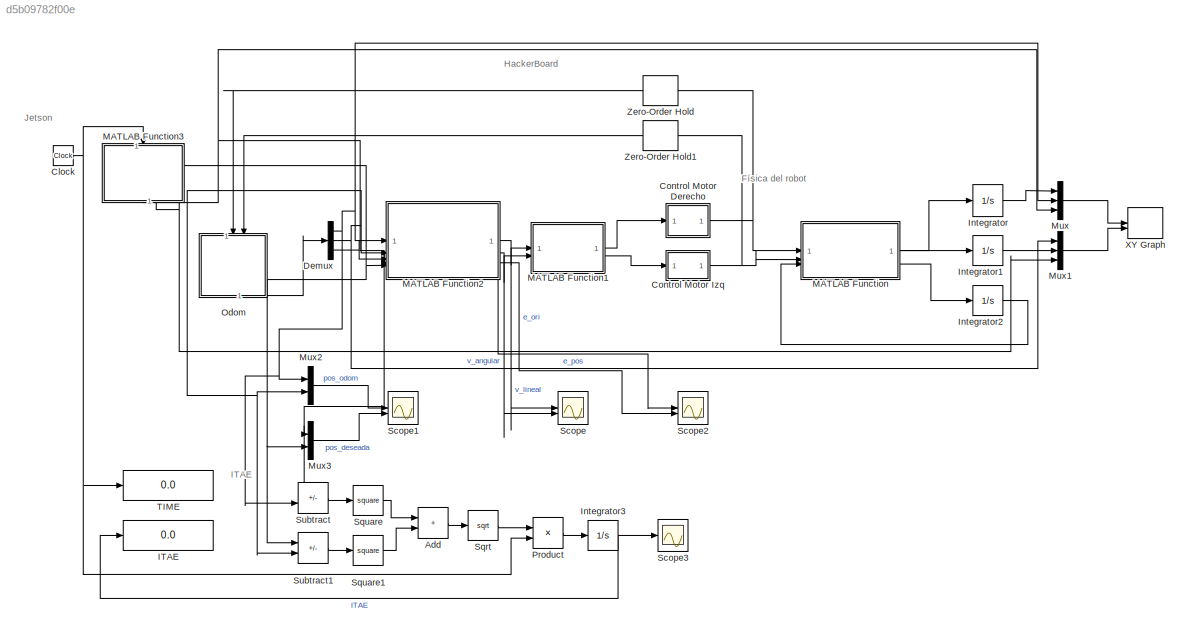
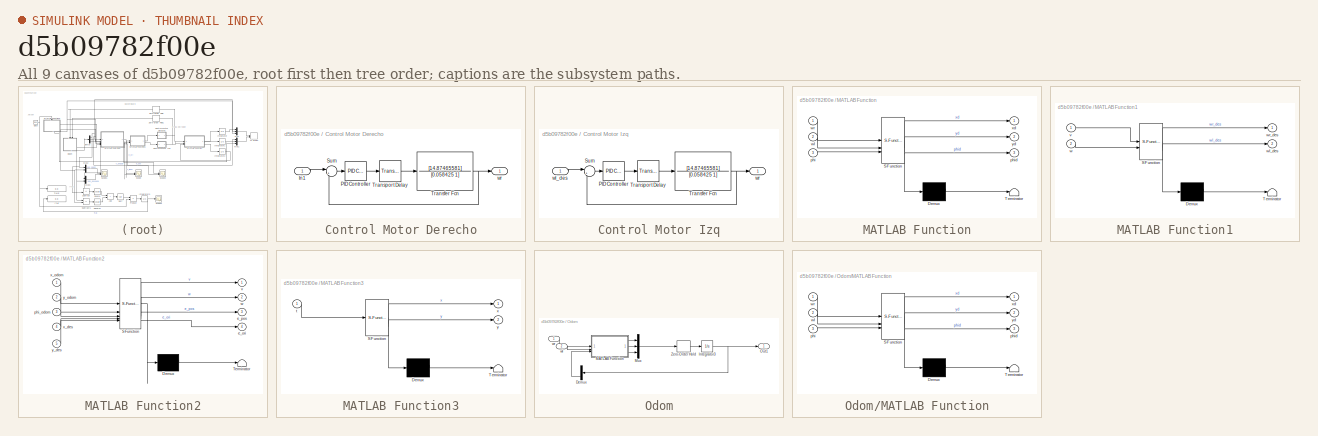
[diagram: thumbnail index - all 9 canvases of the model, root first then tree order]
MODEL slx_d5b09782f00e
KIND model
CONFIG AbsTol = auto
CONFIG EnableMultiTasking = off
CONFIG FixedStep = 0.001
CONFIG MaxStep = auto
CONFIG MinStep = auto
CONFIG RelTol = 1e-3
CONFIG SampleTimeConstraint = Unconstrained
CONFIG SolverName = FixedStepAuto
CONFIG StartTime = 0.0
CONFIG StopTime = 160
BLOCK [Sum] Add
  IconShape = rectangular
BLOCK [Clock] Clock
BLOCK [SubSystem] Control Motor Derecho
BLOCK [Inport] Control Motor Derecho/In1
BLOCK [Reference] Control Motor Derecho/PID Controller  REF=slpidlib/PID Controller
  LibrarySourceBlock = simulink/Continuous/PID Controller
  SourceBlock = slpidlib/PID Controller
  SourceType = PID 1dof
BLOCK [Sum] Control Motor Derecho/Sum
  Inputs = |+-
BLOCK [TransferFcn] Control Motor Derecho/Transfer Fcn
  Denominator = [0.058425 1]
  Numerator = [14.87465581]
BLOCK [TransportDelay] Control Motor Derecho/Transport Delay
  DelayTime = 0.043735
BLOCK [Outport] Control Motor Derecho/wr
BLOCK [SubSystem] Control Motor Izq
BLOCK [Reference] Control Motor Izq/PID Controller  REF=slpidlib/PID Controller
  LibrarySourceBlock = simulink/Continuous/PID Controller
  SourceBlock = slpidlib/PID Controller
  SourceType = PID 1dof
BLOCK [Sum] Control Motor Izq/Sum
  Inputs = |+-
BLOCK [TransferFcn] Control Motor Izq/Transfer Fcn
  Denominator = [0.058425 1]
  Numerator = [14.87465581]
BLOCK [TransportDelay] Control Motor Izq/Transport Delay
  DelayTime = 0.043735
BLOCK [Inport] Control Motor Izq/wl_des
BLOCK [Outport] Control Motor Izq/wr
BLOCK [Demux] Demux
  Outputs = 3
BLOCK [Display] ITAE
  Decimation = 1
BLOCK [Integrator] Integrator
  ContinuousStateAttributes = 'x'
BLOCK [Integrator] Integrator1
  ContinuousStateAttributes = 'y'
BLOCK [Integrator] Integrator2
  ContinuousStateAttributes = 'orientation'
BLOCK [Integrator] Integrator3
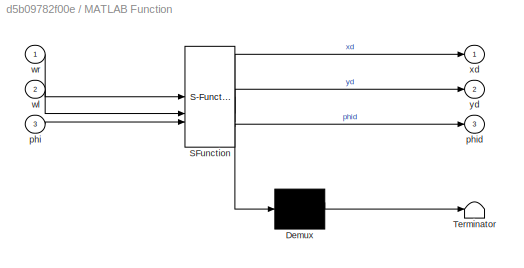
BLOCK [SubSystem] MATLAB Function
  ErrorFcn = Stateflow.Translate.translate
  PermitHierarchicalResolution = ExplicitOnly
  SFBlockType = MATLAB Function
  TreatAsAtomicUnit = on
BLOCK [Demux] MATLAB Function/ Demux 
  Outputs = 1
BLOCK [S-Function] MATLAB Function/ SFunction 
  EnableBusSupport = on
  FunctionName = sf_sfun
  PortCounts = [3 4]
  SFcnIsStateOwnerBlock = off
  SFunctionDeploymentMode = off
  Tag = Stateflow S-Function 2
BLOCK [Terminator] MATLAB Function/ Terminator 
BLOCK [Inport] MATLAB Function/phi
  Port = 3
BLOCK [Outport] MATLAB Function/phid
  Port = 3
BLOCK [Inport] MATLAB Function/wl
  Port = 2
BLOCK [Inport] MATLAB Function/wr
BLOCK [Outport] MATLAB Function/xd
BLOCK [Outport] MATLAB Function/yd
  Port = 2
BLOCK [SubSystem] MATLAB Function1
  ErrorFcn = Stateflow.Translate.translate
  PermitHierarchicalResolution = ExplicitOnly
  SFBlockType = MATLAB Function
  TreatAsAtomicUnit = on
BLOCK [Demux] MATLAB Function1/ Demux 
  Outputs = 1
BLOCK [S-Function] MATLAB Function1/ SFunction 
  EnableBusSupport = on
  FunctionName = sf_sfun
  PortCounts = [2 3]
  SFcnIsStateOwnerBlock = off
  SFunctionDeploymentMode = off
  Tag = Stateflow S-Function 1
BLOCK [Terminator] MATLAB Function1/ Terminator 
BLOCK [Inport] MATLAB Function1/v
BLOCK [Inport] MATLAB Function1/w
  Port = 2
BLOCK [Outport] MATLAB Function1/wl_des
  Port = 2
BLOCK [Outport] MATLAB Function1/wr_des
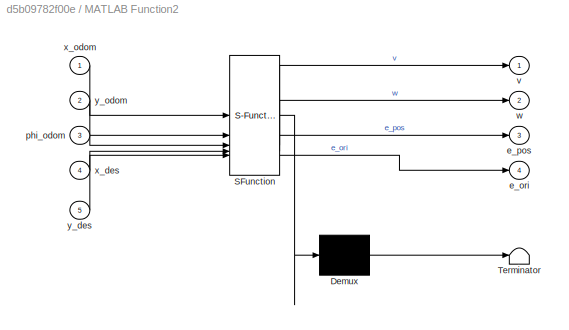
BLOCK [SubSystem] MATLAB Function2
  ErrorFcn = Stateflow.Translate.translate
  PermitHierarchicalResolution = ExplicitOnly
  SFBlockType = MATLAB Function
  TreatAsAtomicUnit = on
BLOCK [Demux] MATLAB Function2/ Demux 
  Outputs = 1
BLOCK [S-Function] MATLAB Function2/ SFunction 
  EnableBusSupport = on
  FunctionName = sf_sfun
  PortCounts = [5 5]
  SFcnIsStateOwnerBlock = off
  SFunctionDeploymentMode = off
  Tag = Stateflow S-Function 3
BLOCK [Terminator] MATLAB Function2/ Terminator 
BLOCK [Outport] MATLAB Function2/e_ori
  Port = 4
BLOCK [Outport] MATLAB Function2/e_pos
  Port = 3
BLOCK [Inport] MATLAB Function2/phi_odom
  Port = 3
BLOCK [Outport] MATLAB Function2/v
BLOCK [Outport] MATLAB Function2/w
  Port = 2
BLOCK [Inport] MATLAB Function2/x_des
  Port = 4
BLOCK [Inport] MATLAB Function2/x_odom
BLOCK [Inport] MATLAB Function2/y_des
  Port = 5
BLOCK [Inport] MATLAB Function2/y_odom
  Port = 2
BLOCK [SubSystem] MATLAB Function3
  ErrorFcn = Stateflow.Translate.translate
  NameLocation = left
  PermitHierarchicalResolution = ExplicitOnly
  SFBlockType = MATLAB Function
  TreatAsAtomicUnit = on
BLOCK [Demux] MATLAB Function3/ Demux 
  Outputs = 1
BLOCK [S-Function] MATLAB Function3/ SFunction 
  EnableBusSupport = on
  FunctionName = sf_sfun
  PortCounts = [1 3]
  SFcnIsStateOwnerBlock = off
  SFunctionDeploymentMode = off
  Tag = Stateflow S-Function 5
BLOCK [Terminator] MATLAB Function3/ Terminator 
BLOCK [Inport] MATLAB Function3/t
BLOCK [Outport] MATLAB Function3/x
BLOCK [Outport] MATLAB Function3/y
  Port = 2
BLOCK [Mux] Mux
  DisplayOption = bar
  Inputs = 3
BLOCK [Mux] Mux1
  DisplayOption = bar
  Inputs = 3
BLOCK [Mux] Mux2
  DisplayOption = bar
  Inputs = 2
BLOCK [Mux] Mux3
  DisplayOption = bar
  Inputs = 2
BLOCK [SubSystem] Odom
  NameLocation = right
BLOCK [Demux] Odom/Demux
  Outputs = 3
BLOCK [Integrator] Odom/Integrator3
  InitialCondition = [0,0,0]
BLOCK [SubSystem] Odom/MATLAB Function
  ErrorFcn = Stateflow.Translate.translate
  PermitHierarchicalResolution = ExplicitOnly
  SFBlockType = MATLAB Function
  TreatAsAtomicUnit = on
BLOCK [Demux] Odom/MATLAB Function/ Demux 
  Outputs = 1
BLOCK [S-Function] Odom/MATLAB Function/ SFunction 
  EnableBusSupport = on
  FunctionName = sf_sfun
  PortCounts = [3 4]
  SFcnIsStateOwnerBlock = off
  SFunctionDeploymentMode = off
  Tag = Stateflow S-Function 4
BLOCK [Terminator] Odom/MATLAB Function/ Terminator 
BLOCK [Inport] Odom/MATLAB Function/phi
  Port = 3
BLOCK [Outport] Odom/MATLAB Function/phid
  Port = 3
BLOCK [Inport] Odom/MATLAB Function/wl
  Port = 2
BLOCK [Inport] Odom/MATLAB Function/wr
BLOCK [Outport] Odom/MATLAB Function/xd
BLOCK [Outport] Odom/MATLAB Function/yd
  Port = 2
BLOCK [Mux] Odom/Mux
  DisplayOption = bar
  Inputs = 3
BLOCK [Outport] Odom/Out1
BLOCK [ZeroOrderHold] Odom/Zero-Order Hold
  SampleTime = 0.1
BLOCK [Inport] Odom/wl
  Port = 2
BLOCK [Inport] Odom/wr
BLOCK [Product] Product
BLOCK [Scope] Scope
  Floating = off
  NumInputPorts = 2
  ScopeSpecificationString = Simulink.scopes.TimeScopeBlockCfg('CurrentConfiguration', extmgr.ConfigurationSet(extmgr.Configuration('Core','General UI',true),extmgr.Configuration('Core','Source UI',true),extmgr.Configuration('Sources','WiredSimulink',true),extmgr.Configuration('Visuals','Time Domain',true,'SerializedDisplays',{struct('MinYLimReal','-0.0375','MaxYLimReal','0.3375','YLabelReal','','MinYLimMag','0.00000','MaxYLi...<+1451ch>
BLOCK [Scope] Scope1
  Floating = off
  NumInputPorts = 2
  ScopeSpecificationString = Simulink.scopes.TimeScopeBlockCfg('CurrentConfiguration', extmgr.ConfigurationSet(extmgr.Configuration('Core','General UI',true),extmgr.Configuration('Core','Source UI',true),extmgr.Configuration('Sources','WiredSimulink',true,'DataLoggingVariableName','ScopeData1'),extmgr.Configuration('Visuals','Time Domain',true,'SerializedDisplays',{struct('MinYLimReal','-4.75058','MaxYLimReal','2.75058','YLab...<+1531ch>
BLOCK [Scope] Scope2
  Floating = off
  NumInputPorts = 2
  ScopeSpecificationString = Simulink.scopes.TimeScopeBlockCfg('CurrentConfiguration', extmgr.ConfigurationSet(extmgr.Configuration('Core','General UI',true),extmgr.Configuration('Core','Source UI',true),extmgr.Configuration('Sources','WiredSimulink',true,'DataLoggingVariableName','ScopeData1'),extmgr.Configuration('Visuals','Time Domain',true,'SerializedDisplays',{struct('MinYLimReal','-7.24282','MaxYLimReal','2.55231','YLab...<+1491ch>
BLOCK [Scope] Scope3
  Floating = off
  NumInputPorts = 1
  ScopeSpecificationString = Simulink.scopes.TimeScopeBlockCfg('CurrentConfiguration', extmgr.ConfigurationSet(extmgr.Configuration('Core','General UI',true),extmgr.Configuration('Core','Source UI',true),extmgr.Configuration('Sources','WiredSimulink',true,'DataLoggingVariableName','ScopeData1'),extmgr.Configuration('Visuals','Time Domain',true,'SerializedDisplays',{struct('MinYLimReal','-92.82399','MaxYLimReal','835.41591','Y...<+1490ch>
BLOCK [Sqrt] Sqrt
BLOCK [Math] Square
  Operator = square
BLOCK [Math] Square1
  Operator = square
BLOCK [Sum] Subtract
  IconShape = rectangular
  Inputs = +-
BLOCK [Sum] Subtract1
  IconShape = rectangular
  Inputs = +-
BLOCK [Display] TIME
  Decimation = 1
BLOCK [Record] XY Graph
  CompatibilityTag = XY
  FileSettingsInternal = {"entries":[{"content":{"excelSettings":{"content":{},"type":"Streamout.ExcelSettings"}},"type":"Streamout.FileSettingStorage","uuid":""}],"packageUris":["http:\/\/schema.mathworks.com\/mf0\/streamout_blocks\/R2020a"],"version":"1.0"}
  Layout = [1 1]
  SignalsInternal = {"entries":[{"content":{"signals":[{"content":{"blockPath":[],"dimensions":[3],"domain":"","hasChildren":true,"lineColor":"#77ac30","lineWidth":2,"port":1,"signalID":1,"signalName":"Mux"},"type":"RecordBlkView.Signal","uuid":""},{"content":{"blockPath":[],"channel":[1],"dimensions":[3],"domain":"","lineColor":"#139fff","parentID":1,"plots":[ 1 ],"port":1,"signalID":2,"signalName":"Mux"},"type":"Re...<+1384ch>
  VisualizationBindings = {"xyplotplugin":{"info":[{"series":[{"bindingParametersList":[{"parameter":"X-Axis","signalID":2,"signalName":"Mux(1)"},{"parameter":"Y-Axis","signalID":6,"signalName":"Mux1(1)"}],"seriesID":0},{"bindingParametersList":[{"parameter":"X-Axis","signalID":3,"signalName":"Mux(2)"},{"parameter":"Y-Axis","signalID":7,"signalName":"Mux1(2)"}],"seriesID":1},{"bindingParametersList":[{"parameter":"X-Axis",...<+128ch>
BLOCK [ZeroOrderHold] Zero-Order Hold
  NameLocation = top
  SampleTime = 0.01
BLOCK [ZeroOrderHold] Zero-Order Hold1
  NameLocation = top
  SampleTime = 0.01
ANNOTATION (root): Física del robot
ANNOTATION (root): HackerBoard
ANNOTATION (root): ITAE
ANNOTATION (root): Jetson
LINE Add:1 -> Sqrt:1
NET Clock:1 -> MATLAB Function3:1, Product:2, TIME:1
LINE Control Motor Derecho/In1:1 -> Control Motor Derecho/Sum:1
LINE Control Motor Derecho/PID Controller:1 -> Control Motor Derecho/Transport Delay:1
LINE Control Motor Derecho/Sum:1 -> Control Motor Derecho/PID Controller:1
NET Control Motor Derecho/Transfer Fcn:1 -> Control Motor Derecho/Sum:2, Control Motor Derecho/wr:1
LINE Control Motor Derecho/Transport Delay:1 -> Control Motor Derecho/Transfer Fcn:1
NET Control Motor Derecho:1 -> MATLAB Function:1, Zero-Order Hold:1
LINE Control Motor Izq/PID Controller:1 -> Control Motor Izq/Transport Delay:1
LINE Control Motor Izq/Sum:1 -> Control Motor Izq/PID Controller:1
NET Control Motor Izq/Transfer Fcn:1 -> Control Motor Izq/Sum:2, Control Motor Izq/wr:1
LINE Control Motor Izq/Transport Delay:1 -> Control Motor Izq/Transfer Fcn:1
LINE Control Motor Izq/wl_des:1 -> Control Motor Izq/Sum:1
NET Control Motor Izq:1 -> MATLAB Function:2, Zero-Order Hold1:1
NET Demux:1 -> MATLAB Function2:1, Mux2:1, Mux:2, Subtract:2
NET Demux:2 -> MATLAB Function2:2, Mux1:2, Mux2:2, Subtract1:2
LINE Demux:3 -> MATLAB Function2:3
LINE Integrator1:1 -> Mux1:1
LINE Integrator2:1 -> MATLAB Function:3
NET Integrator3:1 -> ITAE:1, Scope3:1
LINE Integrator:1 -> Mux:1
LINE MATLAB Function1:1 -> Control Motor Derecho:1
LINE MATLAB Function1:2 -> Control Motor Izq:1
NET MATLAB Function2:1 -> MATLAB Function1:1, Scope:1
NET MATLAB Function2:2 -> MATLAB Function1:2, Scope:2
LINE MATLAB Function2:3 -> Scope2:1
LINE MATLAB Function2:4 -> Scope2:2
NET MATLAB Function3:1 -> MATLAB Function2:4, Mux3:1, Mux:3, Subtract:1
NET MATLAB Function3:2 -> MATLAB Function2:5, Mux1:3, Mux3:2, Subtract1:1
LINE MATLAB Function:1 -> Integrator:1
LINE MATLAB Function:2 -> Integrator1:1
LINE MATLAB Function:3 -> Integrator2:1
LINE Mux1:1 -> XY Graph:2
LINE Mux2:1 -> Scope1:1
LINE Mux3:1 -> Scope1:2
LINE Mux:1 -> XY Graph:1
LINE Odom/Demux:3 -> Odom/MATLAB Function:3
NET Odom/Integrator3:1 -> Odom/Demux:1, Odom/Out1:1
LINE Odom/MATLAB Function:1 -> Odom/Mux:1
LINE Odom/MATLAB Function:2 -> Odom/Mux:2
LINE Odom/MATLAB Function:3 -> Odom/Mux:3
LINE Odom/Mux:1 -> Odom/Zero-Order Hold:1
LINE Odom/Zero-Order Hold:1 -> Odom/Integrator3:1
LINE Odom/wl:1 -> Odom/MATLAB Function:2
LINE Odom/wr:1 -> Odom/MATLAB Function:1
LINE Odom:1 -> Demux:1
LINE Product:1 -> Integrator3:1
LINE Sqrt:1 -> Product:1
LINE Square1:1 -> Add:2
LINE Square:1 -> Add:1
LINE Subtract1:1 -> Square1:1
LINE Subtract:1 -> Square:1
LINE Zero-Order Hold1:1 -> Odom:2
LINE Zero-Order Hold:1 -> Odom:1
note: NET lines group one-source signal fan-out (src -> all destinations, sorted); 1:1 wires keep LINE
CHART MATLAB Function1 states=1 transitions=1
  STATE_LABEL 'eML_blk_kernel()'
  STATE_LABEL 'SCRIPT:\nfunction [wr_des,wl_des] = IK(v,w) %Twist local\n\nR=0.0505;\nb=0.1712;\n\nwr_des=(v/R)+(w*b/(2*R));\nwl_des=(v/R)-(w*b/(2*R));'
CHART MATLAB Function states=1 transitions=1
  STATE_LABEL 'eML_blk_kernel()'
  STATE_LABEL 'SCRIPT:\nfunction [xd, yd, phid] = ROBOT(wr,wl,phi) %Psi es el heading.\n% El heading es la orientación (dirección del mov)\n% Las letras latina son translacionales, las letras griegas son\n% rotacionales)\n%El sufijo d significa (derivada) (Lo transforma en velocidad)\n\nR=0.0505;%Metros\nb=0.1712; %Metros\n\nxd= (wr+wl)*(R/2)*cos(phi); %Vxl*Cos(phi)\nyd= (wr+wl)*(R/2)*sin(phi); %Vxl*Sin(phi)\nphid=(wr-wl)*(...<+8ch>'
CHART MATLAB Function2 states=1 transitions=1
  STATE_LABEL 'eML_blk_kernel()'
  STATE_LABEL 'SCRIPT:\n%CONTROLADOR Turn and Go\nfunction [v, w, e_pos, e_ori] = control(x_odom, y_odom, phi_odom, x_des, y_des)\n \nKl = 1.5;         % Ganancia de velocidad lineal\nKw = 2;       % Ganancia de velocidad angular\n\ne_pos = sqrt((x_des - x_odom)^2 + (y_des - y_odom)^2);    % Error de posición\nphi_des = atan2(y_des - y_odom, x_des - x_odom);          % Orientación deseada\ne_ori = phi_des - phi_odom;\ne_o...<+2527ch>'
CHART Odom/MATLAB Function states=1 transitions=1
  STATE_LABEL 'eML_blk_kernel()'
  STATE_LABEL 'SCRIPT:\nfunction [xd, yd, phid] = cinematica(wr,wl,phi) %Psi es el heading.\n% El heading es la orientación (dirección del mov)\n% Las letras latina son translacionales, las letras griegas son\n% rotacionales)\n%El sufijo d significa (derivada) (Lo transforma en velocidad)\n\nR=0.0505;%Metros\nb=0.1712; %Metros\n\nxd= (wr+wl)*(R/2)*cos(phi); %Vxl*Cos(phi)\nyd= (wr+wl)*(R/2)*sin(phi); %Vxl*Sin(phi)\nphid=(wr-...<+13ch>'
CHART MATLAB Function3 states=1 transitions=1
  STATE_LABEL 'eML_blk_kernel()'
  STATE_LABEL 'SCRIPT:\nfunction [x, y] = PathPlanning(t)\n%TRAYECTORIA DE CURVAS AMPLIAS\n\nr = 2;             % Curvas amplias\nw = 0.1 / r * 0.8;\nx = r * cos(w * t) - r;\ny = r * sin(w * t);\n\n\n% % % %TRAYECTORIA DE CURVAS CERRADAS\n% r = 0.5;             % Curvas cerradas\n% w = 0.1 / r * 0.8;\n% x = r * cos(w * t) - r;\n% y = r * sin(w * t);\n\n\n% % %TRAYECTORIA DE CUADRANTES\n%     % Definir puntos objetivo (Trayectoria...<+1946ch>'
CHART  states=0 transitions=0
CHART  states=0 transitions=0
CHART  states=0 transitions=0
CHART  states=0 transitions=0
CHART  states=0 transitions=0
